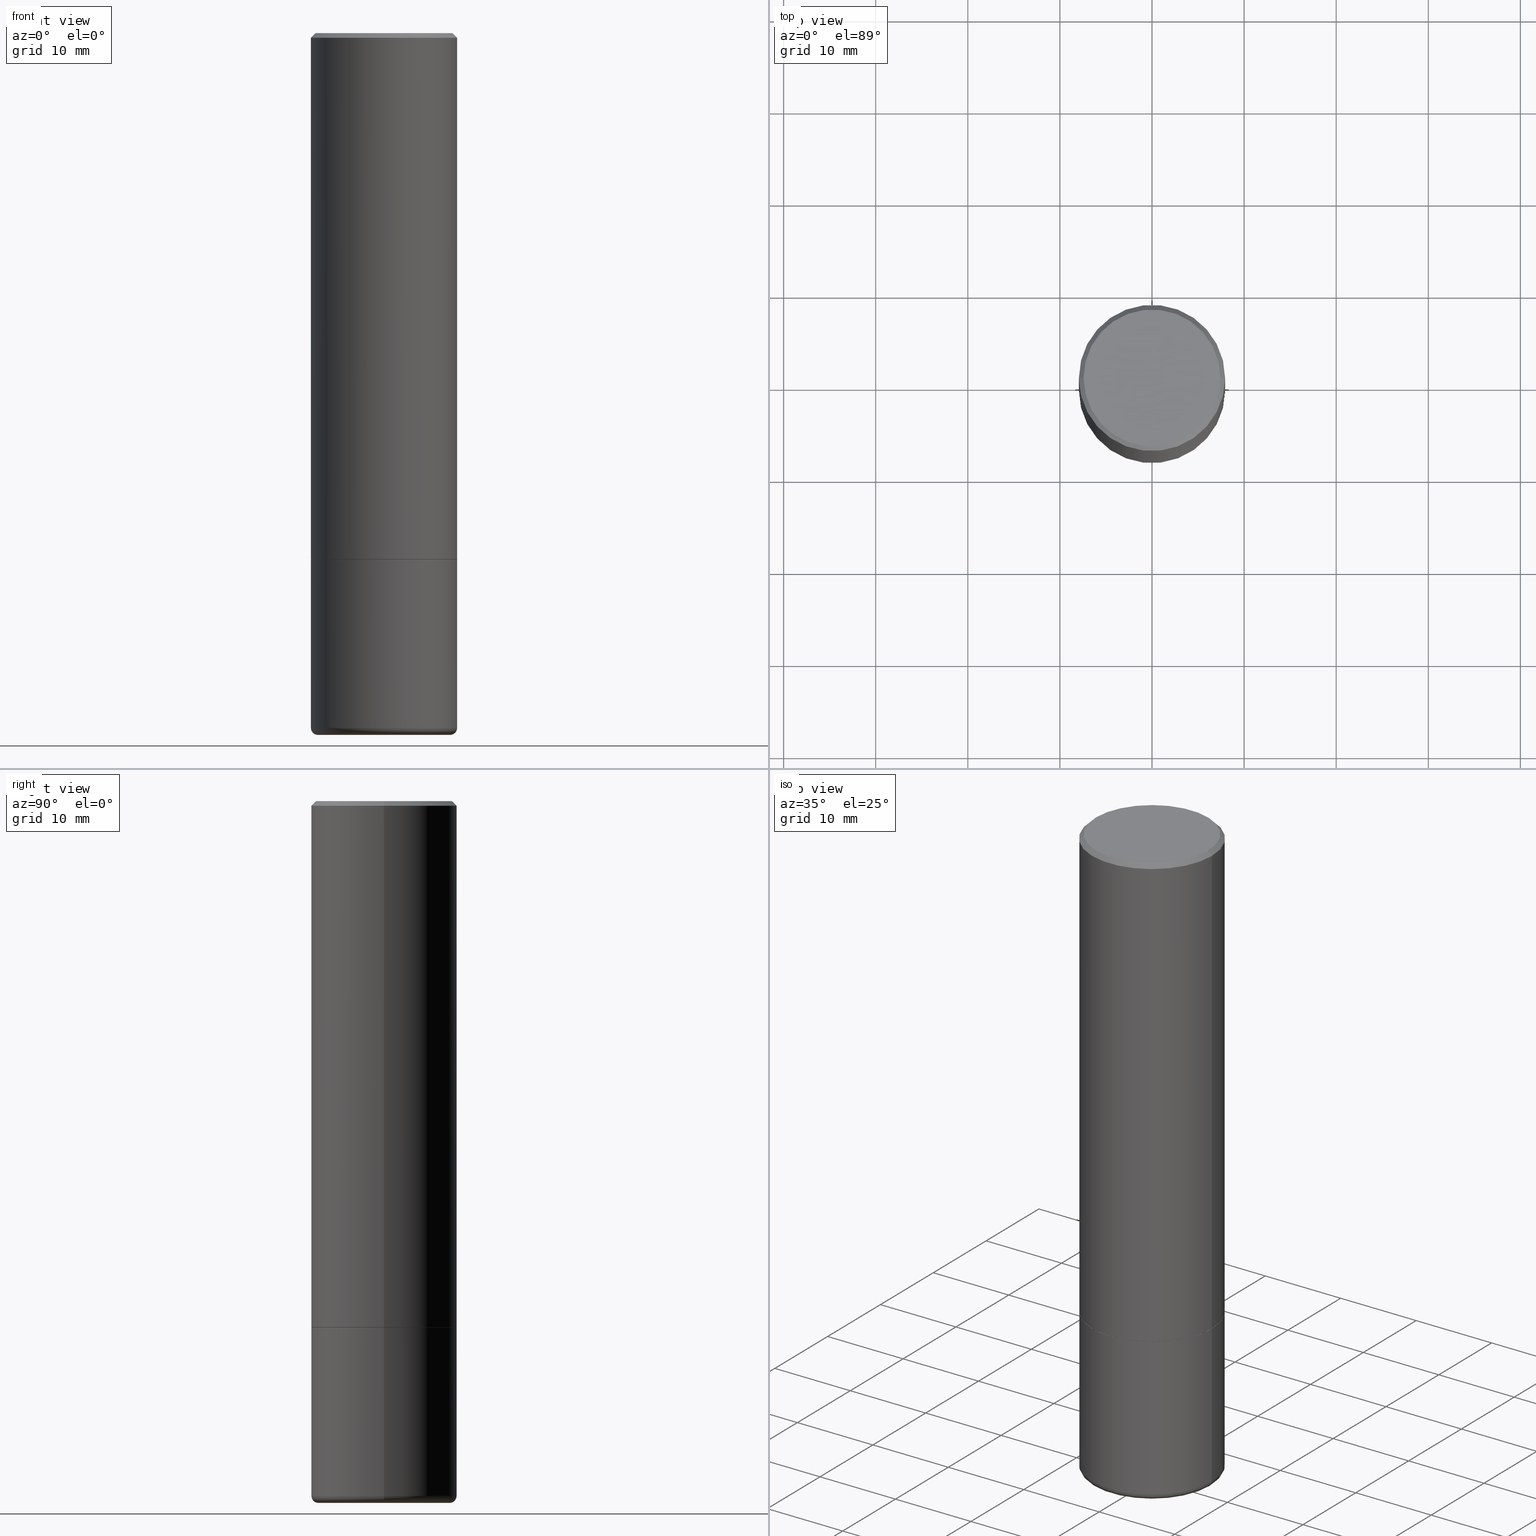
[diagram: canonical four-view strip — front | top / right | iso, engineering-drawing reading convention]
A machine part, canonical four-view strip (front | top / right | iso — engineering-drawing reading convention). The complete STEP part file that produces these views, byte-faithful:
ISO-10303-21;
HEADER;
FILE_DESCRIPTION (( 'STEP AP203' ),
    '1' );
FILE_NAME ('32598.STEP',
    '2022-04-26T19:39:22',
    ( '' ),
    ( '' ),
    'SwSTEP 2.0',
    'SolidWorks 2022',
    '' );
FILE_SCHEMA (( 'CONFIG_CONTROL_DESIGN' ));
ENDSEC;

DATA;
#1 = ORIENTED_EDGE ( 'NONE', *, *, #139, .T. ) ;
#2 = DIRECTION ( 'NONE',  ( -1.000000000000000000, 6.982962677686265133E-15, 0.000000000000000000 ) ) ;
#3 = DIRECTION ( 'NONE',  ( 2.438088387897960049E-29, -3.491481338843145188E-15, -1.000000000000000000 ) ) ;
#4 = ADVANCED_FACE ( 'NONE', ( #190 ), #252, .T. ) ;
#5 = DIRECTION ( 'NONE',  ( 1.000000000000000000, -6.982962677686269077E-15, 0.000000000000000000 ) ) ;
#6 = COORDINATED_UNIVERSAL_TIME_OFFSET ( 5, 0, .BEHIND. ) ;
#7 = CIRCLE ( 'NONE', #227, 0.3124999999999998335 ) ;
#8 = ORIENTED_EDGE ( 'NONE', *, *, #209, .T. ) ;
#9 = EDGE_LOOP ( 'NONE', ( #69, #44 ) ) ;
#10 = ADVANCED_FACE ( 'NONE', ( #375 ), #438, .T. ) ;
#11 = ORIENTED_EDGE ( 'NONE', *, *, #79, .T. ) ;
#12 = LINE ( 'NONE', #183, #415 ) ;
#13 = DIRECTION ( 'NONE',  ( 2.445468806185136597E-29, -3.491481338843145583E-15, -1.000000000000000000 ) ) ;
#14 = VECTOR ( 'NONE', #173, 39.37007874015748143 ) ;
#15 = CC_DESIGN_DATE_AND_TIME_ASSIGNMENT ( #246, #341, ( #90 ) ) ;
#16 = DIRECTION ( 'NONE',  ( -2.445468806185136597E-29, 3.491481338843145583E-15, 1.000000000000000000 ) ) ;
#17 = CARTESIAN_POINT ( 'NONE',  ( 0.3124999999999998890, -2.182175836776957558E-15, 1.523805242436229235E-29 ) ) ;
#18 = FACE_OUTER_BOUND ( 'NONE', #112, .T. ) ;
#19 = LOCAL_TIME ( 15, 39, 22.00000000000000000, #6 ) ;
#20 = CARTESIAN_POINT ( 'NONE',  ( -0.3124999999999998890, 2.220446049250312292E-15, -1.537167215704657391E-29 ) ) ;
#21 = DIRECTION ( 'NONE',  ( 1.000000000000000000, -6.982962677686269077E-15, 0.000000000000000000 ) ) ;
#22 = DIRECTION ( 'NONE',  ( 0.000000000000000000, 0.000000000000000000, 1.000000000000000000 ) ) ;
#23 = CARTESIAN_POINT ( 'NONE',  ( -0.3125000000000000000, 2.220446049250313081E-15, -1.537167215704658232E-29 ) ) ;
#24 = DIRECTION ( 'NONE',  ( -2.445468806185136597E-29, 3.491481338843145583E-15, 1.000000000000000000 ) ) ;
#25 = CIRCLE ( 'NONE', #176, 0.3114999999999999991 ) ;
#26 = DIRECTION ( 'NONE',  ( 1.000000000000000000, -6.982962677686270655E-15, 0.000000000000000000 ) ) ;
#27 = CIRCLE ( 'NONE', #99, 0.2924999999999997602 ) ;
#28 = ORIENTED_EDGE ( 'NONE', *, *, #180, .F. ) ;
#29 = ORIENTED_EDGE ( 'NONE', *, *, #220, .T. ) ;
#30 = APPROVAL ( #93, 'UNSPECIFIED' ) ;
#31 = APPROVAL_ROLE ( '' ) ;
#32 = ORIENTED_EDGE ( 'NONE', *, *, #102, .F. ) ;
#33 = AXIS2_PLACEMENT_3D ( 'NONE', #129, #382, #188 ) ;
#34 = PERSON_AND_ORGANIZATION ( #151, #92 ) ;
#35 = CARTESIAN_POINT ( 'NONE',  ( 7.324358850716097075E-29, -1.045724328259121687E-14, -2.995073513999098047 ) ) ;
#36 = LOCAL_TIME ( 15, 39, 22.00000000000000000, #144 ) ;
#37 = COORDINATED_UNIVERSAL_TIME_OFFSET ( 5, 0, .BEHIND. ) ;
#38 = FACE_OUTER_BOUND ( 'NONE', #9, .T. ) ;
#39 = APPROVAL_STATUS ( 'not_yet_approved' ) ;
#40 = ORIENTED_EDGE ( 'NONE', *, *, #239, .T. ) ;
#41 = FACE_OUTER_BOUND ( 'NONE', #241, .T. ) ;
#42 = ORIENTED_EDGE ( 'NONE', *, *, #279, .T. ) ;
#43 = CONICAL_SURFACE ( 'NONE', #54, 2255.510300424564321, 1.553343034274960788 ) ;
#44 = ORIENTED_EDGE ( 'NONE', *, *, #180, .T. ) ;
#45 = DIRECTION ( 'NONE',  ( -2.445468806185136597E-29, 3.491481338843145583E-15, 1.000000000000000000 ) ) ;
#46 = CC_DESIGN_PERSON_AND_ORGANIZATION_ASSIGNMENT ( #207, #70, ( #145 ) ) ;
#47 = DIRECTION ( 'NONE',  ( -2.445468806185136597E-29, 3.491481338843145583E-15, 1.000000000000000000 ) ) ;
#48 = AXIS2_PLACEMENT_3D ( 'NONE', #325, #133, #365 ) ;
#49 = CIRCLE ( 'NONE', #223, 0.3125000000000000000 ) ;
#50 = CARTESIAN_POINT ( 'NONE',  ( -2.087702828670439639E-46, 2.980686340760894400E-32, 8.537024980200822558E-18 ) ) ;
#51 = CARTESIAN_POINT ( 'NONE',  ( 5.502304813916558464E-29, -7.855833012397078448E-15, -2.250000000000000444 ) ) ;
#52 = CARTESIAN_POINT ( 'NONE',  ( 0.000000000000000000, 0.000000000000000000, 0.000000000000000000 ) ) ;
#53 = CARTESIAN_POINT ( 'NONE',  ( 5.502304813916558464E-29, -7.855833012397078448E-15, -2.250000000000000444 ) ) ;
#54 = AXIS2_PLACEMENT_3D ( 'NONE', #337, #178, #235 ) ;
#55 = CARTESIAN_POINT ( 'NONE',  ( 0.3124999999999998335, -2.213735251080465334E-15, -0.02000000000000005246 ) ) ;
#56 = CALENDAR_DATE ( 2022, 26, 4 ) ;
#57 = ORIENTED_EDGE ( 'NONE', *, *, #77, .T. ) ;
#58 = CARTESIAN_POINT ( 'NONE',  ( 7.324358850716097075E-29, -1.045724328259121687E-14, -2.995073513999098047 ) ) ;
#59 = CONICAL_SURFACE ( 'NONE', #276, 0.3114999999999999991, 0.7853981633974141952 ) ;
#60 = ADVANCED_FACE ( 'NONE', ( #38 ), #309, .F. ) ;
#61 = VERTEX_POINT ( 'NONE', #314 ) ;
#62 = AXIS2_PLACEMENT_3D ( 'NONE', #143, #45, #270 ) ;
#63 = CARTESIAN_POINT ( 'NONE',  ( 5.502304813916558464E-29, -7.855833012397078448E-15, -2.250000000000000444 ) ) ;
#64 = PERSON_AND_ORGANIZATION ( #151, #92 ) ;
#65 = VERTEX_POINT ( 'NONE', #273 ) ;
#66 = CALENDAR_DATE ( 2022, 26, 4 ) ;
#67 = EDGE_LOOP ( 'NONE', ( #364, #11, #398 ) ) ;
#68 = CALENDAR_DATE ( 2022, 26, 4 ) ;
#69 = ORIENTED_EDGE ( 'NONE', *, *, #372, .T. ) ;
#70 = PERSON_AND_ORGANIZATION_ROLE ( 'design_supplier' ) ;
#71 = DIRECTION ( 'NONE',  ( 1.000000000000000000, -6.982962677686265133E-15, 0.000000000000000000 ) ) ;
#72 = VERTEX_POINT ( 'NONE', #421 ) ;
#73 = PLANE ( 'NONE',  #222 ) ;
#74 = AXIS2_PLACEMENT_3D ( 'NONE', #353, #47, #192 ) ;
#75 = AXIS2_PLACEMENT_3D ( 'NONE', #50, #285, #125 ) ;
#76 = DIRECTION ( 'NONE',  ( -1.000000000000000000, 6.982962677686265922E-15, -4.876176775795935793E-29 ) ) ;
#77 = EDGE_CURVE ( 'NONE', #202, #433, #108, .T. ) ;
#78 = DIRECTION ( 'NONE',  ( 1.000000000000000000, -6.982962677686265133E-15, 0.000000000000000000 ) ) ;
#79 = EDGE_CURVE ( 'NONE', #128, #65, #339, .T. ) ;
#80 = LOCAL_TIME ( 15, 39, 22.00000000000000000, #360 ) ;
#81 = CYLINDRICAL_SURFACE ( 'NONE', #74, 0.3124999999999998890 ) ;
#82 = CARTESIAN_POINT ( 'NONE',  ( 0.2819764278068823682, -1.240892678183174612E-14, -2.999995430854692113 ) ) ;
#83 = DIRECTION ( 'NONE',  ( 1.000000000000000000, -6.982962677686265922E-15, 4.876176775795935793E-29 ) ) ;
#84 = AXIS2_PLACEMENT_3D ( 'NONE', #316, #383, #78 ) ;
#85 = DIRECTION ( 'NONE',  ( -2.445468806185136597E-29, 3.491481338843145583E-15, 1.000000000000000000 ) ) ;
#86 = CARTESIAN_POINT ( 'NONE',  ( 0.3125000000000000000, -1.003800884917403837E-14, -2.250000000000000444 ) ) ;
#87 = FACE_OUTER_BOUND ( 'NONE', #95, .T. ) ;
#88 = DESIGN_CONTEXT ( 'detailed design', #299, 'design' ) ;
#89 = VECTOR ( 'NONE', #404, 39.37007874015747433 ) ;
#90 = PRODUCT_DEFINITION ( 'UNKNOWN', '', #145, #88 ) ;
#91 = DIRECTION ( 'NONE',  ( 1.000000000000000000, -6.982962677686269077E-15, 0.000000000000000000 ) ) ;
#92 = ORGANIZATION ( 'UNSPECIFIED', 'UNSPECIFIED', '' ) ;
#93 = APPROVAL_STATUS ( 'not_yet_approved' ) ;
#94 = ORIENTED_EDGE ( 'NONE', *, *, #147, .F. ) ;
#95 = EDGE_LOOP ( 'NONE', ( #351, #40, #298, #150 ) ) ;
#96 =( NAMED_UNIT ( * ) SI_UNIT ( $, .STERADIAN. ) SOLID_ANGLE_UNIT ( ) );
#97 = ORIENTED_EDGE ( 'NONE', *, *, #279, .F. ) ;
#98 = PERSON_AND_ORGANIZATION_ROLE ( 'creator' ) ;
#99 = AXIS2_PLACEMENT_3D ( 'NONE', #201, #205, #363 ) ;
#100 = EDGE_LOOP ( 'NONE', ( #101, #406, #280, #97 ) ) ;
#101 = ORIENTED_EDGE ( 'NONE', *, *, #111, .T. ) ;
#102 = EDGE_CURVE ( 'NONE', #399, #433, #7, .T. ) ;
#103 = EDGE_LOOP ( 'NONE', ( #437, #302, #361 ) ) ;
#104 = CC_DESIGN_DATE_AND_TIME_ASSIGNMENT ( #210, #184, ( #384 ) ) ;
#105 = APPROVAL_DATE_TIME ( #411, #30 ) ;
#106 = CIRCLE ( 'NONE', #286, 0.3125000000000000000 ) ;
#107 = CARTESIAN_POINT ( 'NONE',  ( 4.890937612370285420E-31, -6.982962677686308865E-17, -0.02000000000000005246 ) ) ;
#108 = LINE ( 'NONE', #254, #374 ) ;
#109 = DIRECTION ( 'NONE',  ( -0.7071067811865232589, 7.493145998870265808E-15, 0.7071067811865715536 ) ) ;
#110 = ADVANCED_FACE ( 'NONE', ( #219 ), #81, .T. ) ;
#111 = EDGE_CURVE ( 'NONE', #146, #61, #168, .T. ) ;
#112 = EDGE_LOOP ( 'NONE', ( #164, #8, #42, #32 ) ) ;
#113 = CARTESIAN_POINT ( 'NONE',  ( 4.890937612370285420E-31, -6.982962677686308865E-17, -0.02000000000000005246 ) ) ;
#114 = AXIS2_PLACEMENT_3D ( 'NONE', #287, #16, #155 ) ;
#115 = DIRECTION ( 'NONE',  ( 1.000000000000000000, -6.982962677686269077E-15, 4.883557194083114022E-29 ) ) ;
#116 = AXIS2_PLACEMENT_3D ( 'NONE', #387, #305, #312 ) ;
#117 = DIRECTION ( 'NONE',  ( 7.105427357601001859E-15, 1.000000000000000000, -3.491481338843145583E-15 ) ) ;
#118 = CONICAL_SURFACE ( 'NONE', #368, 0.3124999999999998335, 0.7853981633974473908 ) ;
#119 = ADVANCED_FACE ( 'NONE', ( #200 ), #338, .F. ) ;
#120 = CIRCLE ( 'NONE', #253, 0.2819764278068817576 ) ;
#121 = CYLINDRICAL_SURFACE ( 'NONE', #244, 0.3124999999999998890 ) ;
#122 = DIRECTION ( 'NONE',  ( 1.000000000000000000, -6.982962677686265922E-15, 0.000000000000000000 ) ) ;
#123 = MECHANICAL_CONTEXT ( 'NONE', #281, 'mechanical' ) ;
#124 = CC_DESIGN_PERSON_AND_ORGANIZATION_ASSIGNMENT ( #395, #359, ( #409 ) ) ;
#125 = DIRECTION ( 'NONE',  ( 1.000000000000000000, -6.982962677686266711E-15, 4.876067333457693400E-29 ) ) ;
#126 = CARTESIAN_POINT ( 'NONE',  ( 0.3125000000000000000, -1.255187541314110291E-14, -2.970000000000000195 ) ) ;
#127 = AXIS2_PLACEMENT_3D ( 'NONE', #140, #251, #115 ) ;
#128 = VERTEX_POINT ( 'NONE', #58 ) ;
#129 = CARTESIAN_POINT ( 'NONE',  ( 5.502304813916558464E-29, -7.855833012397078448E-15, -2.250000000000000444 ) ) ;
#130 = CYLINDRICAL_SURFACE ( 'NONE', #62, 0.3125000000000000000 ) ;
#131 = FACE_OUTER_BOUND ( 'NONE', #238, .T. ) ;
#132 = ORIENTED_EDGE ( 'NONE', *, *, #317, .T. ) ;
#133 = DIRECTION ( 'NONE',  ( 2.445468806185136597E-29, -3.491481338843145583E-15, -1.000000000000000000 ) ) ;
#134 = DIRECTION ( 'NONE',  ( 1.000000000000000000, -6.982962677686265922E-15, 0.000000000000000000 ) ) ;
#135 = DIRECTION ( 'NONE',  ( 2.438088387897960049E-29, -3.491481338843145188E-15, -1.000000000000000000 ) ) ;
#136 = DIRECTION ( 'NONE',  ( -2.445468806185136597E-29, 3.491481338843145583E-15, 1.000000000000000000 ) ) ;
#137 = AXIS2_PLACEMENT_3D ( 'NONE', #435, #228, #26 ) ;
#138 = EDGE_LOOP ( 'NONE', ( #29, #367, #208, #250 ) ) ;
#139 = EDGE_CURVE ( 'NONE', #430, #243, #267, .T. ) ;
#140 = CARTESIAN_POINT ( 'NONE',  ( 7.263042354369856275E-29, -1.036969957636414298E-14, -2.970000000000000195 ) ) ;
#141 = DATE_AND_TIME ( #66, #319 ) ;
#142 = ORIENTED_EDGE ( 'NONE', *, *, #220, .F. ) ;
#143 = CARTESIAN_POINT ( 'NONE',  ( 0.000000000000000000, 0.000000000000000000, 0.000000000000000000 ) ) ;
#144 = COORDINATED_UNIVERSAL_TIME_OFFSET ( 5, 0, .BEHIND. ) ;
#145 = PRODUCT_DEFINITION_FORMATION_WITH_SPECIFIED_SOURCE ( 'ANY', '', #409, .NOT_KNOWN. ) ;
#146 = VERTEX_POINT ( 'NONE', #334 ) ;
#147 = EDGE_CURVE ( 'NONE', #72, #216, #336, .T. ) ;
#148 = CC_DESIGN_SECURITY_CLASSIFICATION ( #384, ( #145 ) ) ;
#149 = DIRECTION ( 'NONE',  ( -2.445468806185136597E-29, 3.491481338843145583E-15, 1.000000000000000000 ) ) ;
#150 = ORIENTED_EDGE ( 'NONE', *, *, #209, .F. ) ;
#151 = PERSON ( 'UNSPECIFIED', 'UNSPECIFIED', 'UNSPECIFIED', ('UNSPECIFIED'), ('UNSPECIFIED'), ('UNSPECIFIED') ) ;
#152 = VERTEX_POINT ( 'NONE', #177 ) ;
#153 = AXIS2_PLACEMENT_3D ( 'NONE', #320, #394, #21 ) ;
#154 = CC_DESIGN_APPROVAL ( #356, ( #384 ) ) ;
#155 = DIRECTION ( 'NONE',  ( 1.000000000000000000, -6.982962677686265133E-15, 0.000000000000000000 ) ) ;
#156 = VECTOR ( 'NONE', #413, 39.37007874015747433 ) ;
#157 = CIRCLE ( 'NONE', #403, 0.2819764278068817576 ) ;
#158 = ADVANCED_FACE ( 'NONE', ( #165 ), #400, .T. ) ;
#159 = CARTESIAN_POINT ( 'NONE',  ( 4.890937612370285420E-31, -6.982962677686308865E-17, -0.02000000000000005246 ) ) ;
#160 = EDGE_CURVE ( 'NONE', #152, #146, #214, .T. ) ;
#161 = DIRECTION ( 'NONE',  ( -2.445468806185136597E-29, 3.491481338843145583E-15, 1.000000000000000000 ) ) ;
#162 = DIRECTION ( 'NONE',  ( 1.000000000000000000, -6.982962677686266711E-15, 4.876176775795935232E-29 ) ) ;
#163 = DIRECTION ( 'NONE',  ( -0.7071067811865469066, 2.468850131082250355E-15, -0.7071067811865481278 ) ) ;
#164 = ORIENTED_EDGE ( 'NONE', *, *, #440, .F. ) ;
#165 = FACE_OUTER_BOUND ( 'NONE', #138, .T. ) ;
#166 = DIRECTION ( 'NONE',  ( 1.000000000000000000, -6.982962677686265922E-15, 0.000000000000000000 ) ) ;
#167 = ADVANCED_FACE ( 'NONE', ( #191 ), #73, .F. ) ;
#168 = CIRCLE ( 'NONE', #84, 0.3125000000000000000 ) ;
#169 = CIRCLE ( 'NONE', #308, 0.3125000000000000000 ) ;
#170 = DIRECTION ( 'NONE',  ( -2.445468806185136597E-29, 3.491481338843145583E-15, 1.000000000000000000 ) ) ;
#171 = ORIENTED_EDGE ( 'NONE', *, *, #311, .F. ) ;
#172 = DIRECTION ( 'NONE',  ( 1.000000000000000000, -6.982962677686265133E-15, 0.000000000000000000 ) ) ;
#173 = DIRECTION ( 'NONE',  ( -2.445468806185136877E-29, 3.491481338843145188E-15, 1.000000000000000000 ) ) ;
#174 = APPROVAL_DATE_TIME ( #405, #356 ) ;
#175 = ORIENTED_EDGE ( 'NONE', *, *, #372, .F. ) ;
#176 = AXIS2_PLACEMENT_3D ( 'NONE', #63, #136, #134 ) ;
#177 = CARTESIAN_POINT ( 'NONE',  ( 0.3114999999999999991, -1.003102588649635078E-14, -2.250000000000000444 ) ) ;
#178 = DIRECTION ( 'NONE',  ( 2.445468806185136597E-29, -3.491481338843145583E-15, -1.000000000000000000 ) ) ;
#179 = EDGE_CURVE ( 'NONE', #72, #430, #366, .T. ) ;
#180 = EDGE_CURVE ( 'NONE', #202, #264, #189, .T. ) ;
#181 = LOCAL_TIME ( 15, 39, 22.00000000000000000, #212 ) ;
#182 = ORIENTED_EDGE ( 'NONE', *, *, #393, .T. ) ;
#183 = CARTESIAN_POINT ( 'NONE',  ( -0.3124999999999998335, 2.112346210000093866E-15, -0.02000000000000005246 ) ) ;
#184 = DATE_TIME_ROLE ( 'classification_date' ) ;
#185 = ORIENTED_EDGE ( 'NONE', *, *, #317, .F. ) ;
#186 = PERSON_AND_ORGANIZATION ( #151, #92 ) ;
#187 = ORIENTED_EDGE ( 'NONE', *, *, #261, .T. ) ;
#188 = DIRECTION ( 'NONE',  ( 1.000000000000000000, -6.982962677686265922E-15, 0.000000000000000000 ) ) ;
#189 = CIRCLE ( 'NONE', #75, 0.2924999999999997602 ) ;
#190 = FACE_OUTER_BOUND ( 'NONE', #324, .T. ) ;
#191 = FACE_OUTER_BOUND ( 'NONE', #419, .T. ) ;
#192 = DIRECTION ( 'NONE',  ( 1.000000000000000000, -6.982962677686266711E-15, 4.876176775795935232E-29 ) ) ;
#193 = AXIS2_PLACEMENT_3D ( 'NONE', #221, #117, #257 ) ;
#194 = DIRECTION ( 'NONE',  ( -2.445468806185136877E-29, 3.491481338843145188E-15, 1.000000000000000000 ) ) ;
#195 = EDGE_CURVE ( 'NONE', #65, #72, #197, .T. ) ;
#196 = ADVANCED_FACE ( 'NONE', ( #18 ), #121, .T. ) ;
#197 = CIRCLE ( 'NONE', #193, 0.02999999999999998848 ) ;
#198 = DIRECTION ( 'NONE',  ( 1.000000000000000000, -6.982962677686267499E-15, 0.000000000000000000 ) ) ;
#199 = DIRECTION ( 'NONE',  ( -2.445468806185136877E-29, 3.491481338843145188E-15, 1.000000000000000000 ) ) ;
#200 = FACE_OUTER_BOUND ( 'NONE', #103, .T. ) ;
#201 = CARTESIAN_POINT ( 'NONE',  ( -2.087702828670439639E-46, 2.980686340760894400E-32, 8.537024980200822558E-18 ) ) ;
#202 = VERTEX_POINT ( 'NONE', #229 ) ;
#203 = CARTESIAN_POINT ( 'NONE',  ( 2.182175836777013173E-15, 0.3124999999999921729, -2.250000000000001332 ) ) ;
#204 = CC_DESIGN_APPROVAL ( #30, ( #90 ) ) ;
#205 = DIRECTION ( 'NONE',  ( -2.445468806185136597E-29, 3.491481338843145583E-15, 1.000000000000000000 ) ) ;
#206 = CIRCLE ( 'NONE', #329, 0.3124999999999998335 ) ;
#207 = PERSON_AND_ORGANIZATION ( #151, #92 ) ;
#208 = ORIENTED_EDGE ( 'NONE', *, *, #111, .F. ) ;
#209 = EDGE_CURVE ( 'NONE', #61, #146, #412, .T. ) ;
#210 = DATE_AND_TIME ( #68, #19 ) ;
#211 = DIRECTION ( 'NONE',  ( 0.7071067811865469066, -7.319954787623254468E-15, -0.7071067811865481278 ) ) ;
#212 = COORDINATED_UNIVERSAL_TIME_OFFSET ( 5, 0, .BEHIND. ) ;
#213 = VERTEX_POINT ( 'NONE', #304 ) ;
#214 = LINE ( 'NONE', #301, #282 ) ;
#215 = SECURITY_CLASSIFICATION_LEVEL ( 'unclassified' ) ;
#216 = VERTEX_POINT ( 'NONE', #274 ) ;
#217 = DIRECTION ( 'NONE',  ( 1.000000000000000000, -6.982962677686269077E-15, 4.883557194083114022E-29 ) ) ;
#218 = EDGE_LOOP ( 'NONE', ( #327, #347, #377, #307 ) ) ;
#219 = FACE_OUTER_BOUND ( 'NONE', #100, .T. ) ;
#220 = EDGE_CURVE ( 'NONE', #152, #213, #25, .T. ) ;
#221 = CARTESIAN_POINT ( 'NONE',  ( -0.2825000000000000289, -8.362416347841860148E-15, -2.970000000000000195 ) ) ;
#222 = AXIS2_PLACEMENT_3D ( 'NONE', #315, #354, #83 ) ;
#223 = AXIS2_PLACEMENT_3D ( 'NONE', #224, #355, #5 ) ;
#224 = CARTESIAN_POINT ( 'NONE',  ( 7.263042354369856275E-29, -1.036969957636414298E-14, -2.970000000000000195 ) ) ;
#225 = EDGE_CURVE ( 'NONE', #128, #268, #378, .T. ) ;
#226 = CARTESIAN_POINT ( 'NONE',  ( 0.000000000000000000, 0.000000000000000000, 0.000000000000000000 ) ) ;
#227 = AXIS2_PLACEMENT_3D ( 'NONE', #107, #247, #71 ) ;
#228 = DIRECTION ( 'NONE',  ( -6.982962677686266711E-15, -1.000000000000000000, 3.491481338843145583E-15 ) ) ;
#229 = CARTESIAN_POINT ( 'NONE',  ( 0.2924999999999997602, -2.110215457714318353E-15, 8.537024980215342529E-18 ) ) ;
#230 = ADVANCED_FACE ( 'NONE', ( #370 ), #43, .F. ) ;
#231 = APPROVAL_PERSON_ORGANIZATION ( #34, #356, #31 ) ;
#232 = APPROVAL_ROLE ( '' ) ;
#233 = ORIENTED_EDGE ( 'NONE', *, *, #179, .F. ) ;
#234 = EDGE_CURVE ( 'NONE', #268, #65, #157, .T. ) ;
#235 = DIRECTION ( 'NONE',  ( -1.000000000000000000, 6.982962677686266711E-15, 0.000000000000000000 ) ) ;
#236 = CARTESIAN_POINT ( 'NONE',  ( -0.3124999999999998335, 2.112346210000093866E-15, -0.02000000000000005246 ) ) ;
#237 = CC_DESIGN_APPROVAL ( #255, ( #145 ) ) ;
#238 = EDGE_LOOP ( 'NONE', ( #28, #57, #402, #295 ) ) ;
#239 = EDGE_CURVE ( 'NONE', #213, #152, #283, .T. ) ;
#240 = CARTESIAN_POINT ( 'NONE',  ( 7.324358850716097075E-29, -1.045724328259121687E-14, -2.995073513999098047 ) ) ;
#241 = EDGE_LOOP ( 'NONE', ( #94, #381, #1, #185 ) ) ;
#242 = PERSON_AND_ORGANIZATION_ROLE ( 'creator' ) ;
#243 = VERTEX_POINT ( 'NONE', #86 ) ;
#244 = AXIS2_PLACEMENT_3D ( 'NONE', #226, #357, #162 ) ;
#245 = FACE_OUTER_BOUND ( 'NONE', #417, .T. ) ;
#246 = DATE_AND_TIME ( #344, #181 ) ;
#247 = DIRECTION ( 'NONE',  ( -2.445468806185136597E-29, 3.491481338843145583E-15, 1.000000000000000000 ) ) ;
#248 = FACE_OUTER_BOUND ( 'NONE', #218, .T. ) ;
#249 = APPROVAL_ROLE ( '' ) ;
#250 = ORIENTED_EDGE ( 'NONE', *, *, #160, .F. ) ;
#251 = DIRECTION ( 'NONE',  ( -2.445468806185136597E-29, 3.491481338843145583E-15, 1.000000000000000000 ) ) ;
#252 = TOROIDAL_SURFACE ( 'NONE', #127, 0.2825000000000000289, 0.03000000000000001277 ) ;
#253 = AXIS2_PLACEMENT_3D ( 'NONE', #288, #161, #198 ) ;
#254 = CARTESIAN_POINT ( 'NONE',  ( 0.3124999999999998335, -2.213735251080465334E-15, -0.02000000000000005246 ) ) ;
#255 = APPROVAL ( #39, 'UNSPECIFIED' ) ;
#256 = APPROVAL_PERSON_ORGANIZATION ( #397, #30, #232 ) ;
#257 = DIRECTION ( 'NONE',  ( -1.000000000000000000, 7.105427357600993970E-15, 0.000000000000000000 ) ) ;
#258 = AXIS2_PLACEMENT_3D ( 'NONE', #113, #13, #2 ) ;
#259 = CLOSED_SHELL ( 'NONE', ( #321, #4, #119, #230, #10, #348, #407 ) ) ;
#260 = APPLICATION_PROTOCOL_DEFINITION ( 'international standard', 'config_control_design', 1994, #299 ) ;
#261 = EDGE_CURVE ( 'NONE', #243, #216, #106, .T. ) ;
#262 = ADVANCED_FACE ( 'NONE', ( #131 ), #118, .T. ) ;
#263 = CARTESIAN_POINT ( 'NONE',  ( 4.890937612370285420E-31, -6.982962677686308865E-17, -0.02000000000000005246 ) ) ;
#264 = VERTEX_POINT ( 'NONE', #386 ) ;
#265 =( NAMED_UNIT ( * ) PLANE_ANGLE_UNIT ( ) SI_UNIT ( $, .RADIAN. ) );
#266 = ORIENTED_EDGE ( 'NONE', *, *, #388, .T. ) ;
#267 = LINE ( 'NONE', #328, #14 ) ;
#268 = VERTEX_POINT ( 'NONE', #82 ) ;
#269 = ORIENTED_EDGE ( 'NONE', *, *, #195, .T. ) ;
#270 = DIRECTION ( 'NONE',  ( 1.000000000000000000, -6.982962677686266711E-15, 4.876176775795936353E-29 ) ) ;
#271 = CARTESIAN_POINT ( 'NONE',  ( 7.263042354369856275E-29, -1.036969957636414298E-14, -2.970000000000000195 ) ) ;
#272 = APPROVAL_DATE_TIME ( #141, #255 ) ;
#273 = CARTESIAN_POINT ( 'NONE',  ( -0.2819764278068823682, -8.505397192081103649E-15, -2.999995430854692113 ) ) ;
#274 = CARTESIAN_POINT ( 'NONE',  ( -0.3125000000000000000, -6.892320245130297635E-15, -2.250000000000000444 ) ) ;
#275 = CARTESIAN_POINT ( 'NONE',  ( 5.502304813916558464E-29, -7.855833012397078448E-15, -2.250000000000000444 ) ) ;
#276 = AXIS2_PLACEMENT_3D ( 'NONE', #326, #170, #166 ) ;
#277 = EDGE_LOOP ( 'NONE', ( #332, #182, #266, #233 ) ) ;
#278 = EDGE_LOOP ( 'NONE', ( #187, #132 ) ) ;
#279 = EDGE_CURVE ( 'NONE', #146, #433, #423, .T. ) ;
#280 = ORIENTED_EDGE ( 'NONE', *, *, #429, .F. ) ;
#281 = APPLICATION_CONTEXT ( 'configuration controlled 3d designs of mechanical parts and assemblies' ) ;
#282 = VECTOR ( 'NONE', #418, 39.37007874015748854 ) ;
#283 = CIRCLE ( 'NONE', #391, 0.3114999999999999991 ) ;
#284 = ADVANCED_BREP_SHAPE_REPRESENTATION ( '32598', ( #343, #333, #425 ), #350 ) ;
#285 = DIRECTION ( 'NONE',  ( -2.445468806185136597E-29, 3.491481338843145583E-15, 1.000000000000000000 ) ) ;
#286 = AXIS2_PLACEMENT_3D ( 'NONE', #53, #396, #91 ) ;
#287 = CARTESIAN_POINT ( 'NONE',  ( 5.499859345110372861E-29, -7.852341531058235441E-15, -2.249000000000000110 ) ) ;
#288 = CARTESIAN_POINT ( 'NONE',  ( 7.336395244853088111E-29, -1.047442806344385870E-14, -2.999995430854692113 ) ) ;
#289 = CC_DESIGN_PERSON_AND_ORGANIZATION_ASSIGNMENT ( #306, #379, ( #384 ) ) ;
#290 = DIRECTION ( 'NONE',  ( -2.445468806185136877E-29, 3.491481338843145188E-15, 1.000000000000000000 ) ) ;
#291 =( CONVERSION_BASED_UNIT ( 'INCH', #323 ) LENGTH_UNIT ( ) NAMED_UNIT ( #293 ) );
#292 = VECTOR ( 'NONE', #199, 39.37007874015748143 ) ;
#293 = DIMENSIONAL_EXPONENTS ( 1.000000000000000000, 0.000000000000000000, 0.000000000000000000, 0.000000000000000000, 0.000000000000000000, 0.000000000000000000, 0.000000000000000000 ) ;
#294 = ORIENTED_EDGE ( 'NONE', *, *, #234, .T. ) ;
#295 = ORIENTED_EDGE ( 'NONE', *, *, #362, .F. ) ;
#296 = SHAPE_DEFINITION_REPRESENTATION ( #342, #284 ) ;
#297 = AXIS2_PLACEMENT_3D ( 'NONE', #385, #3, #76 ) ;
#298 = ORIENTED_EDGE ( 'NONE', *, *, #160, .T. ) ;
#299 = APPLICATION_CONTEXT ( 'configuration controlled 3d designs of mechanical parts and assemblies' ) ;
#300 = ORIENTED_EDGE ( 'NONE', *, *, #388, .F. ) ;
#301 = CARTESIAN_POINT ( 'NONE',  ( 0.3114999999999999991, -1.003102588649635078E-14, -2.250000000000000444 ) ) ;
#302 = ORIENTED_EDGE ( 'NONE', *, *, #225, .T. ) ;
#303 = CC_DESIGN_PERSON_AND_ORGANIZATION_ASSIGNMENT ( #64, #98, ( #90 ) ) ;
#304 = CARTESIAN_POINT ( 'NONE',  ( -0.3114999999999999991, -5.637193936156144762E-15, -2.250000000000000444 ) ) ;
#305 = DIRECTION ( 'NONE',  ( -2.445468806185136597E-29, 3.491481338843145583E-15, 1.000000000000000000 ) ) ;
#306 = PERSON_AND_ORGANIZATION ( #151, #92 ) ;
#307 = ORIENTED_EDGE ( 'NONE', *, *, #139, .F. ) ;
#308 = AXIS2_PLACEMENT_3D ( 'NONE', #275, #149, #416 ) ;
#309 = PLANE ( 'NONE',  #297 ) ;
#310 = AXIS2_PLACEMENT_3D ( 'NONE', #203, #135, #331 ) ;
#311 = EDGE_CURVE ( 'NONE', #430, #72, #49, .T. ) ;
#312 = DIRECTION ( 'NONE',  ( 1.000000000000000000, -6.982962677686266711E-15, 4.876176775795936353E-29 ) ) ;
#313 = CC_DESIGN_PERSON_AND_ORGANIZATION_ASSIGNMENT ( #186, #242, ( #145 ) ) ;
#314 = CARTESIAN_POINT ( 'NONE',  ( -0.3125000000000000000, -1.740639529667233725E-15, -2.249000000000000110 ) ) ;
#315 = CARTESIAN_POINT ( 'NONE',  ( 5.502304813916558464E-29, -7.855833012397078448E-15, -2.250000000000000444 ) ) ;
#316 = CARTESIAN_POINT ( 'NONE',  ( 5.499859345110372861E-29, -7.852341531058235441E-15, -2.249000000000000110 ) ) ;
#317 = EDGE_CURVE ( 'NONE', #216, #243, #169, .T. ) ;
#318 = DIRECTION ( 'NONE',  ( 1.000000000000000000, 0.000000000000000000, 0.000000000000000000 ) ) ;
#319 = LOCAL_TIME ( 15, 39, 22.00000000000000000, #37 ) ;
#320 = CARTESIAN_POINT ( 'NONE',  ( 7.263042354369856275E-29, -1.036969957636414298E-14, -2.970000000000000195 ) ) ;
#321 = ADVANCED_FACE ( 'NONE', ( #248 ), #352, .T. ) ;
#322 = ADVANCED_FACE ( 'NONE', ( #245 ), #422, .T. ) ;
#323 = LENGTH_MEASURE_WITH_UNIT ( LENGTH_MEASURE( 0.02539999999999999897 ), #434 );
#324 = EDGE_LOOP ( 'NONE', ( #294, #269, #171, #300 ) ) ;
#325 = CARTESIAN_POINT ( 'NONE',  ( 1.036026583068238342E-27, -1.479171385126363369E-13, -42.36515225415657682 ) ) ;
#326 = CARTESIAN_POINT ( 'NONE',  ( 5.502304813916558464E-29, -7.855833012397078448E-15, -2.250000000000000444 ) ) ;
#327 = ORIENTED_EDGE ( 'NONE', *, *, #311, .T. ) ;
#328 = CARTESIAN_POINT ( 'NONE',  ( 0.3125000000000000000, -2.182175836776958347E-15, 1.523805242436230075E-29 ) ) ;
#329 = AXIS2_PLACEMENT_3D ( 'NONE', #263, #24, #172 ) ;
#330 = CARTESIAN_POINT ( 'NONE',  ( 7.336395244853088111E-29, -1.047442806344385870E-14, -2.999995430854692113 ) ) ;
#331 = DIRECTION ( 'NONE',  ( -1.000000000000000000, 6.982962677686265922E-15, -4.876176775795935793E-29 ) ) ;
#332 = ORIENTED_EDGE ( 'NONE', *, *, #195, .F. ) ;
#333 = MANIFOLD_SOLID_BREP ( 'Body-Move/Copy2[2]', #420 ) ;
#334 = CARTESIAN_POINT ( 'NONE',  ( 0.3125000000000000000, -1.003451736783519379E-14, -2.249000000000000110 ) ) ;
#335 = APPROVAL_STATUS ( 'not_yet_approved' ) ;
#336 = LINE ( 'NONE', #23, #431 ) ;
#337 = CARTESIAN_POINT ( 'NONE',  ( 1.036026583068238342E-27, -1.479171385126363369E-13, -42.36515225415657682 ) ) ;
#338 = CONICAL_SURFACE ( 'NONE', #48, 2255.510300424564321, 1.553343034274960788 ) ;
#339 = LINE ( 'NONE', #35, #156 ) ;
#340 = VECTOR ( 'NONE', #194, 39.37007874015748143 ) ;
#341 = DATE_TIME_ROLE ( 'creation_date' ) ;
#342 = PRODUCT_DEFINITION_SHAPE ( 'NONE', 'NONE',  #90 ) ;
#343 = MANIFOLD_SOLID_BREP ( 'Body-Move/Copy2[1]', #259 ) ;
#344 = CALENDAR_DATE ( 2022, 26, 4 ) ;
#345 = ORIENTED_EDGE ( 'NONE', *, *, #102, .T. ) ;
#346 = CALENDAR_DATE ( 2022, 26, 4 ) ;
#347 = ORIENTED_EDGE ( 'NONE', *, *, #147, .T. ) ;
#348 = ADVANCED_FACE ( 'NONE', ( #41 ), #130, .T. ) ;
#349 = AXIS2_PLACEMENT_3D ( 'NONE', #271, #380, #217 ) ;
#350 =( GEOMETRIC_REPRESENTATION_CONTEXT ( 3 ) GLOBAL_UNCERTAINTY_ASSIGNED_CONTEXT ( ( #436 ) ) GLOBAL_UNIT_ASSIGNED_CONTEXT ( ( #291, #265, #96 ) ) REPRESENTATION_CONTEXT ( 'NONE', 'WORKASPACE' ) );
#351 = ORIENTED_EDGE ( 'NONE', *, *, #358, .F. ) ;
#352 = CYLINDRICAL_SURFACE ( 'NONE', #116, 0.3125000000000000000 ) ;
#353 = CARTESIAN_POINT ( 'NONE',  ( 0.000000000000000000, 0.000000000000000000, 0.000000000000000000 ) ) ;
#354 = DIRECTION ( 'NONE',  ( -2.438088387897960049E-29, 3.491481338843145188E-15, 1.000000000000000000 ) ) ;
#355 = DIRECTION ( 'NONE',  ( -2.445468806185136597E-29, 3.491481338843145583E-15, 1.000000000000000000 ) ) ;
#356 = APPROVAL ( #335, 'UNSPECIFIED' ) ;
#357 = DIRECTION ( 'NONE',  ( -2.445468806185136597E-29, 3.491481338843145583E-15, 1.000000000000000000 ) ) ;
#358 = EDGE_CURVE ( 'NONE', #213, #61, #410, .T. ) ;
#359 = PERSON_AND_ORGANIZATION_ROLE ( 'design_owner' ) ;
#360 = COORDINATED_UNIVERSAL_TIME_OFFSET ( 5, 0, .BEHIND. ) ;
#361 = ORIENTED_EDGE ( 'NONE', *, *, #393, .F. ) ;
#362 = EDGE_CURVE ( 'NONE', #264, #399, #12, .T. ) ;
#363 = DIRECTION ( 'NONE',  ( 1.000000000000000000, -6.982962677686266711E-15, 4.876067333457693400E-29 ) ) ;
#364 = ORIENTED_EDGE ( 'NONE', *, *, #225, .F. ) ;
#365 = DIRECTION ( 'NONE',  ( -1.000000000000000000, 6.982962677686266711E-15, 0.000000000000000000 ) ) ;
#366 = CIRCLE ( 'NONE', #153, 0.3125000000000000000 ) ;
#367 = ORIENTED_EDGE ( 'NONE', *, *, #358, .T. ) ;
#368 = AXIS2_PLACEMENT_3D ( 'NONE', #159, #426, #424 ) ;
#369 = CIRCLE ( 'NONE', #137, 0.02999999999999998848 ) ;
#370 = FACE_OUTER_BOUND ( 'NONE', #67, .T. ) ;
#371 = ORIENTED_EDGE ( 'NONE', *, *, #362, .T. ) ;
#372 = EDGE_CURVE ( 'NONE', #264, #202, #27, .T. ) ;
#373 = PRODUCT_RELATED_PRODUCT_CATEGORY ( 'detail', '', ( #409 ) ) ;
#374 = VECTOR ( 'NONE', #211, 39.37007874015748143 ) ;
#375 = FACE_OUTER_BOUND ( 'NONE', #277, .T. ) ;
#376 = PERSON_AND_ORGANIZATION ( #151, #92 ) ;
#377 = ORIENTED_EDGE ( 'NONE', *, *, #261, .F. ) ;
#378 = LINE ( 'NONE', #240, #89 ) ;
#379 = PERSON_AND_ORGANIZATION_ROLE ( 'classification_officer' ) ;
#380 = DIRECTION ( 'NONE',  ( -2.445468806185136597E-29, 3.491481338843145583E-15, 1.000000000000000000 ) ) ;
#381 = ORIENTED_EDGE ( 'NONE', *, *, #179, .T. ) ;
#382 = DIRECTION ( 'NONE',  ( -2.445468806185136597E-29, 3.491481338843145583E-15, 1.000000000000000000 ) ) ;
#383 = DIRECTION ( 'NONE',  ( -2.445468806185136597E-29, 3.491481338843145583E-15, 1.000000000000000000 ) ) ;
#384 = SECURITY_CLASSIFICATION ( '', '', #215 ) ;
#385 = CARTESIAN_POINT ( 'NONE',  ( 2.042516583223231356E-15, 0.2924999999999997602, -1.016989779121518999E-15 ) ) ;
#386 = CARTESIAN_POINT ( 'NONE',  ( -0.2924999999999997602, 2.077431396611662611E-15, 8.537024980186416602E-18 ) ) ;
#387 = CARTESIAN_POINT ( 'NONE',  ( 0.000000000000000000, 0.000000000000000000, 0.000000000000000000 ) ) ;
#388 = EDGE_CURVE ( 'NONE', #268, #430, #369, .T. ) ;
#389 = DIRECTION ( 'NONE',  ( 1.000000000000000000, -6.982962677686267499E-15, 0.000000000000000000 ) ) ;
#390 = APPROVAL_PERSON_ORGANIZATION ( #376, #255, #249 ) ;
#391 = AXIS2_PLACEMENT_3D ( 'NONE', #51, #85, #122 ) ;
#392 = DIRECTION ( 'NONE',  ( -2.445468806185136597E-29, 3.491481338843145583E-15, 1.000000000000000000 ) ) ;
#393 = EDGE_CURVE ( 'NONE', #65, #268, #120, .T. ) ;
#394 = DIRECTION ( 'NONE',  ( -2.445468806185136597E-29, 3.491481338843145583E-15, 1.000000000000000000 ) ) ;
#395 = PERSON_AND_ORGANIZATION ( #151, #92 ) ;
#396 = DIRECTION ( 'NONE',  ( -2.445468806185136597E-29, 3.491481338843145583E-15, 1.000000000000000000 ) ) ;
#397 = PERSON_AND_ORGANIZATION ( #151, #92 ) ;
#398 = ORIENTED_EDGE ( 'NONE', *, *, #234, .F. ) ;
#399 = VERTEX_POINT ( 'NONE', #236 ) ;
#400 = CONICAL_SURFACE ( 'NONE', #33, 0.3114999999999999991, 0.7853981633974141952 ) ;
#401 = PLANE ( 'NONE',  #310 ) ;
#402 = ORIENTED_EDGE ( 'NONE', *, *, #429, .T. ) ;
#403 = AXIS2_PLACEMENT_3D ( 'NONE', #330, #392, #389 ) ;
#404 = DIRECTION ( 'NONE',  ( 0.9998476951563914916, -6.920387862090559512E-15, -0.01745240643727605234 ) ) ;
#405 = DATE_AND_TIME ( #346, #36 ) ;
#406 = ORIENTED_EDGE ( 'NONE', *, *, #440, .T. ) ;
#407 = ADVANCED_FACE ( 'NONE', ( #432 ), #401, .F. ) ;
#408 = ORIENTED_EDGE ( 'NONE', *, *, #239, .F. ) ;
#409 = PRODUCT ( '32598', '32598', '', ( #123 ) ) ;
#410 = LINE ( 'NONE', #414, #442 ) ;
#411 = DATE_AND_TIME ( #56, #80 ) ;
#412 = CIRCLE ( 'NONE', #114, 0.3125000000000000000 ) ;
#413 = DIRECTION ( 'NONE',  ( -0.9998476951563914916, 6.920964387254063099E-15, -0.01745240643727605234 ) ) ;
#414 = CARTESIAN_POINT ( 'NONE',  ( -0.3114999999999999991, -5.642492390504367165E-15, -2.250000000000000444 ) ) ;
#415 = VECTOR ( 'NONE', #163, 39.37007874015748143 ) ;
#416 = DIRECTION ( 'NONE',  ( 1.000000000000000000, -6.982962677686269077E-15, 0.000000000000000000 ) ) ;
#417 = EDGE_LOOP ( 'NONE', ( #441, #175, #371, #345 ) ) ;
#418 = DIRECTION ( 'NONE',  ( 0.7071067811865232589, -2.468850131082003836E-15, 0.7071067811865715536 ) ) ;
#419 = EDGE_LOOP ( 'NONE', ( #142, #408 ) ) ;
#420 = CLOSED_SHELL ( 'NONE', ( #158, #110, #262, #322, #196, #439, #167, #60 ) ) ;
#421 = CARTESIAN_POINT ( 'NONE',  ( -0.3125000000000000000, -8.149253527113829903E-15, -2.970000000000000195 ) ) ;
#422 = CONICAL_SURFACE ( 'NONE', #258, 0.3124999999999998335, 0.7853981633974473908 ) ;
#423 = LINE ( 'NONE', #17, #340 ) ;
#424 = DIRECTION ( 'NONE',  ( -1.000000000000000000, 6.982962677686265133E-15, 0.000000000000000000 ) ) ;
#425 = AXIS2_PLACEMENT_3D ( 'NONE', #52, #22, #318 ) ;
#426 = DIRECTION ( 'NONE',  ( 2.445468806185136597E-29, -3.491481338843145583E-15, -1.000000000000000000 ) ) ;
#427 = APPLICATION_PROTOCOL_DEFINITION ( 'international standard', 'config_control_design', 1994, #281 ) ;
#428 = LINE ( 'NONE', #20, #292 ) ;
#429 = EDGE_CURVE ( 'NONE', #433, #399, #206, .T. ) ;
#430 = VERTEX_POINT ( 'NONE', #126 ) ;
#431 = VECTOR ( 'NONE', #290, 39.37007874015748143 ) ;
#432 = FACE_OUTER_BOUND ( 'NONE', #278, .T. ) ;
#433 = VERTEX_POINT ( 'NONE', #55 ) ;
#434 =( LENGTH_UNIT ( ) NAMED_UNIT ( * ) SI_UNIT ( $, .METRE. ) );
#435 = CARTESIAN_POINT ( 'NONE',  ( 0.2825000000000000289, -1.234238653281051459E-14, -2.970000000000000195 ) ) ;
#436 = UNCERTAINTY_MEASURE_WITH_UNIT (LENGTH_MEASURE( 1.000000000000000082E-05 ), #291, 'distance_accuracy_value', 'NONE');
#437 = ORIENTED_EDGE ( 'NONE', *, *, #79, .F. ) ;
#438 = TOROIDAL_SURFACE ( 'NONE', #349, 0.2825000000000000289, 0.03000000000000001277 ) ;
#439 = ADVANCED_FACE ( 'NONE', ( #87 ), #59, .T. ) ;
#440 = EDGE_CURVE ( 'NONE', #61, #399, #428, .T. ) ;
#441 = ORIENTED_EDGE ( 'NONE', *, *, #77, .F. ) ;
#442 = VECTOR ( 'NONE', #109, 39.37007874015748854 ) ;
ENDSEC;
END-ISO-10303-21;
